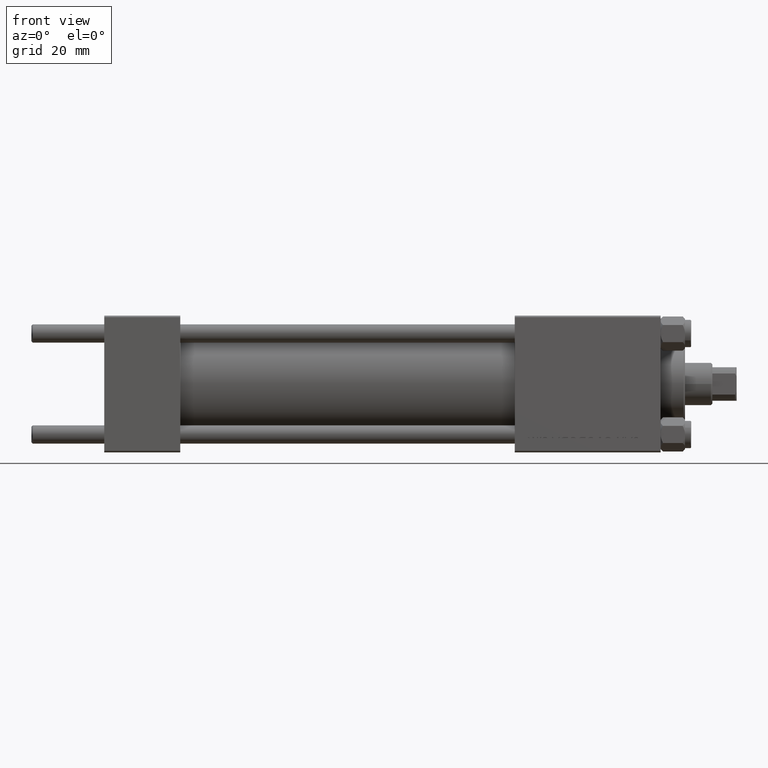
[diagram: clean part render]
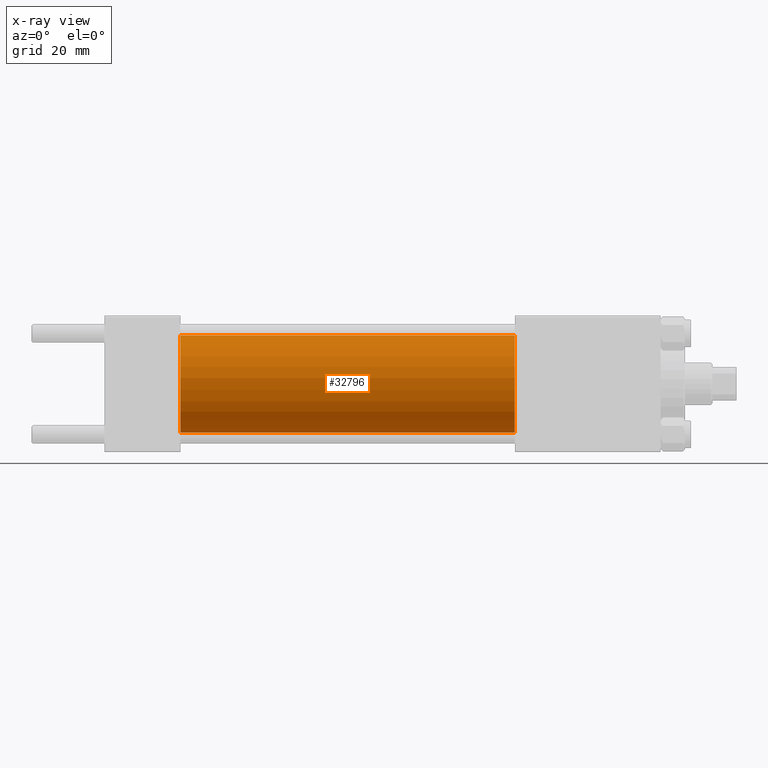
[diagram: x-ray — body ghosted, one internal face saturated and labeled with its STEP entity id]
A machine part, front view, then the same camera in x-ray: the body is ghosted and one INTERNAL B-rep face — a face not visible from any outside direction — is saturated and labeled: STEP entity #32796.
In plain terms, the highlighted cylindrical surface (partial cylindrical patch) has radius 16 mm, axis along (-1, -0, -0).
Its self-contained STEP definition (entity closure, byte-faithful):
#493 = EDGE_CURVE ( 'NONE', #32019, #19617, #45173, .T. ) ;
#6369 = DIRECTION ( 'NONE',  ( 1.000000000000000000, 0.000000000000000000, 0.000000000000000000 ) ) ;
#9517 = CARTESIAN_POINT ( 'NONE',  ( 25.00000000000000000, 0.000000000000000000, 16.00000000000000000 ) ) ;
#13394 = DIRECTION ( 'NONE',  ( -1.000000000000000000, -0.000000000000000000, -0.000000000000000000 ) ) ;
#13936 = CARTESIAN_POINT ( 'NONE',  ( 25.00000000000000000, 0.000000000000000000, 0.000000000000000000 ) ) ;
#15395 = ORIENTED_EDGE ( 'NONE', *, *, #493, .F. ) ;
#15410 = ORIENTED_EDGE ( 'NONE', *, *, #21192, .F. ) ;
#15413 = DIRECTION ( 'NONE',  ( 0.000000000000000000, 0.000000000000000000, -1.000000000000000000 ) ) ;
#17146 = AXIS2_PLACEMENT_3D ( 'NONE', #38833, #34818, #15413 ) ;
#17270 = EDGE_CURVE ( 'NONE', #18303, #35845, #38801, .T. ) ;
#17539 = ORIENTED_EDGE ( 'NONE', *, *, #17270, .T. ) ;
#17611 = EDGE_LOOP ( 'NONE', ( #43961, #17539, #15410, #15395 ) ) ;
#18303 = VERTEX_POINT ( 'NONE', #41037 ) ;
#19073 = AXIS2_PLACEMENT_3D ( 'NONE', #40114, #13394, #43900 ) ;
#19617 = VERTEX_POINT ( 'NONE', #9517 ) ;
#19818 = CYLINDRICAL_SURFACE ( 'NONE', #19073, 16.00000000000000000 ) ;
#21192 = EDGE_CURVE ( 'NONE', #19617, #35845, #34947, .T. ) ;
#21222 = FACE_OUTER_BOUND ( 'NONE', #17611, .T. ) ;
#21761 = DIRECTION ( 'NONE',  ( 0.000000000000000000, 0.000000000000000000, -1.000000000000000000 ) ) ;
#22491 = CARTESIAN_POINT ( 'NONE',  ( 135.0000000000000000, 0.000000000000000000, 16.00000000000000000 ) ) ;
#28294 = VECTOR ( 'NONE', #38564, 1000.000000000000000 ) ;
#32019 = VERTEX_POINT ( 'NONE', #44389 ) ;
#32796 = ADVANCED_FACE ( 'NONE', ( #21222 ), #19818, .F. ) ;
#34818 = DIRECTION ( 'NONE',  ( 1.000000000000000000, 0.000000000000000000, 0.000000000000000000 ) ) ;
#34947 = CIRCLE ( 'NONE', #48606, 16.00000000000000000 ) ;
#35845 = VERTEX_POINT ( 'NONE', #38914 ) ;
#37467 = VECTOR ( 'NONE', #49720, 1000.000000000000000 ) ;
#38564 = DIRECTION ( 'NONE',  ( -1.000000000000000000, -0.000000000000000000, -0.000000000000000000 ) ) ;
#38801 = LINE ( 'NONE', #46381, #28294 ) ;
#38833 = CARTESIAN_POINT ( 'NONE',  ( 135.0000000000000000, 0.000000000000000000, 0.000000000000000000 ) ) ;
#38895 = CIRCLE ( 'NONE', #17146, 16.00000000000000000 ) ;
#38914 = CARTESIAN_POINT ( 'NONE',  ( 25.00000000000000000, 1.959434878635765131E-15, -16.00000000000000000 ) ) ;
#40114 = CARTESIAN_POINT ( 'NONE',  ( 135.0000000000000000, 0.000000000000000000, 0.000000000000000000 ) ) ;
#41037 = CARTESIAN_POINT ( 'NONE',  ( 135.0000000000000000, 1.959434878635765131E-15, -16.00000000000000000 ) ) ;
#43900 = DIRECTION ( 'NONE',  ( 0.000000000000000000, 0.000000000000000000, 1.000000000000000000 ) ) ;
#43961 = ORIENTED_EDGE ( 'NONE', *, *, #47171, .T. ) ;
#44389 = CARTESIAN_POINT ( 'NONE',  ( 135.0000000000000000, 0.000000000000000000, 16.00000000000000000 ) ) ;
#45173 = LINE ( 'NONE', #22491, #37467 ) ;
#46381 = CARTESIAN_POINT ( 'NONE',  ( 135.0000000000000000, 1.959434878635765131E-15, -16.00000000000000000 ) ) ;
#47171 = EDGE_CURVE ( 'NONE', #32019, #18303, #38895, .T. ) ;
#48606 = AXIS2_PLACEMENT_3D ( 'NONE', #13936, #6369, #21761 ) ;
#49720 = DIRECTION ( 'NONE',  ( -1.000000000000000000, -0.000000000000000000, -0.000000000000000000 ) ) ;